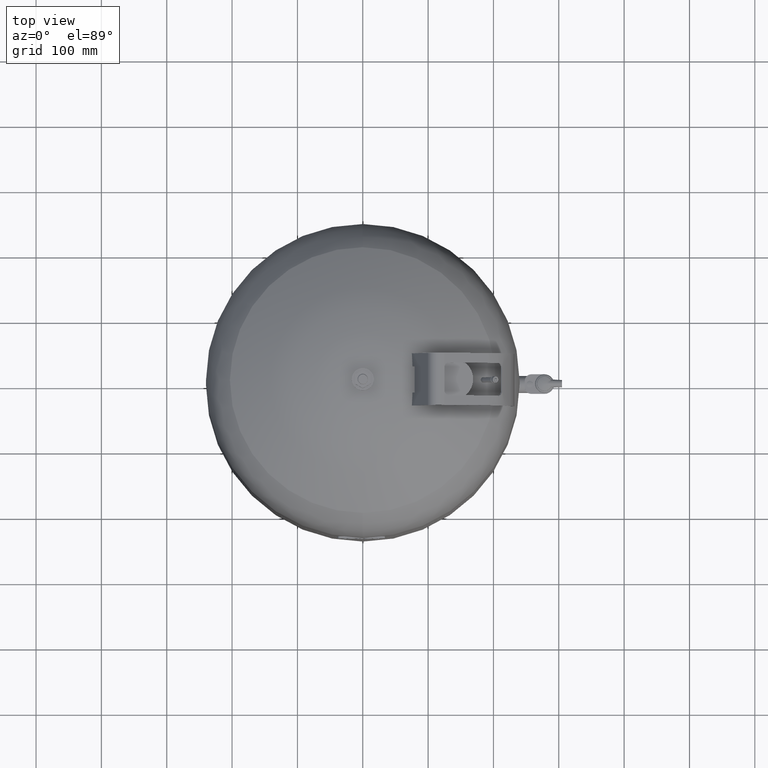
[diagram: clean part render]
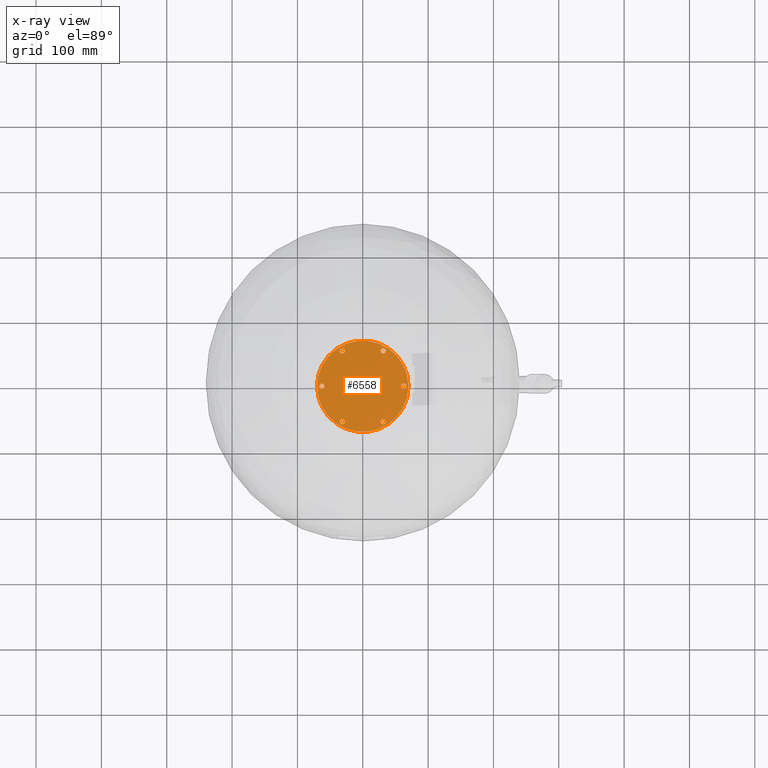
[diagram: x-ray — body ghosted, one internal face saturated and labeled with its STEP entity id]
A machine part, top view, then the same camera in x-ray: the body is ghosted and one INTERNAL B-rep face — a face not visible from any outside direction — is saturated and labeled: STEP entity #6558.
In plain terms, the highlighted planar face has unit normal (0, 0, -1).
Its self-contained STEP definition (entity closure, byte-faithful):
#3342=CARTESIAN_POINT('',(70.0,4.071951E-015,185.250000000000000));
#3343=VERTEX_POINT('',#3342);
#3359=CARTESIAN_POINT('',(-70.0,-4.500294E-015,185.250000000000000));
#3360=VERTEX_POINT('',#3359);
#3367=CARTESIAN_POINT('',(-1.990051E-016,4.071951E-015,185.250000000000000));
#3368=DIRECTION('',(0.0,0.0,-1.0));
#3369=DIRECTION('',(1.0,0.0,0.0));
#3370=AXIS2_PLACEMENT_3D('',#3367,#3368,#3369);
#3371=CIRCLE('',#3370,70.0);
#3372=EDGE_CURVE('',#3343,#3360,#3371,.T.);
#3466=CARTESIAN_POINT('',(-66.500000000000000,4.071951E-015,185.250000000000000));
#3467=VERTEX_POINT('',#3466);
#3476=CARTESIAN_POINT('',(-64.921999999999997,3.183381221280215,185.250000000000000));
#3477=VERTEX_POINT('',#3476);
#3478=CARTESIAN_POINT('',(-62.499999999999993,4.071951E-015,185.250000000000000));
#3479=DIRECTION('',(0.0,0.0,1.0));
#3480=DIRECTION('',(-1.0,0.0,0.0));
#3481=AXIS2_PLACEMENT_3D('',#3478,#3479,#3480);
#3482=CIRCLE('',#3481,4.0);
#3483=EDGE_CURVE('',#3477,#3467,#3482,.T.);
#3485=CARTESIAN_POINT('',(-58.499999999999993,4.561793E-015,185.250000000000000));
#3486=VERTEX_POINT('',#3485);
#3487=CARTESIAN_POINT('',(-62.499999999999993,4.071951E-015,185.250000000000000));
#3488=DIRECTION('',(0.0,0.0,1.0));
#3489=DIRECTION('',(-1.0,0.0,0.0));
#3490=AXIS2_PLACEMENT_3D('',#3487,#3488,#3489);
#3491=CIRCLE('',#3490,4.0);
#3492=EDGE_CURVE('',#3486,#3477,#3491,.T.);
#3601=CARTESIAN_POINT('',(-33.250000000000007,57.590689351665169,185.249999999999970));
#3602=VERTEX_POINT('',#3601);
#3611=CARTESIAN_POINT('',(-29.704110992441013,57.815791875133435,185.249999999999970));
#3612=VERTEX_POINT('',#3611);
#3613=CARTESIAN_POINT('',(-31.250000000000004,54.126587736527412,185.249999999999970));
#3614=DIRECTION('',(-5.302876E-017,9.184851E-017,1.0));
#3615=DIRECTION('',(-0.500000000000000,0.866025403784439,-1.060575E-016));
#3616=AXIS2_PLACEMENT_3D('',#3613,#3614,#3615);
#3617=CIRCLE('',#3616,4.0);
#3618=EDGE_CURVE('',#3612,#3602,#3617,.T.);
#3620=CARTESIAN_POINT('',(-29.250000000000004,50.662486121389655,185.249999999999970));
#3621=VERTEX_POINT('',#3620);
#3622=CARTESIAN_POINT('',(-31.250000000000004,54.126587736527412,185.249999999999970));
#3623=DIRECTION('',(-5.302876E-017,9.184851E-017,1.0));
#3624=DIRECTION('',(-0.500000000000000,0.866025403784439,-1.060575E-016));
#3625=AXIS2_PLACEMENT_3D('',#3622,#3623,#3624);
#3626=CIRCLE('',#3625,4.0);
#3627=EDGE_CURVE('',#3621,#3612,#3626,.T.);
#3694=CARTESIAN_POINT('',(33.249999999999979,57.590689351665191,185.249999999999970));
#3695=VERTEX_POINT('',#3694);
#3704=CARTESIAN_POINT('',(35.217889007558981,54.632410653853249,185.249999999999970));
#3705=VERTEX_POINT('',#3704);
#3706=CARTESIAN_POINT('',(31.249999999999982,54.126587736527433,185.249999999999970));
#3707=DIRECTION('',(5.302876E-017,9.184851E-017,1.000000000000000));
#3708=DIRECTION('',(0.500000000000000,0.866025403784439,-1.060575E-016));
#3709=AXIS2_PLACEMENT_3D('',#3706,#3707,#3708);
#3710=CIRCLE('',#3709,4.0);
#3711=EDGE_CURVE('',#3705,#3695,#3710,.T.);
#3713=CARTESIAN_POINT('',(29.249999999999982,50.662486121389676,185.249999999999970));
#3714=VERTEX_POINT('',#3713);
#3715=CARTESIAN_POINT('',(31.249999999999982,54.126587736527433,185.249999999999970));
#3716=DIRECTION('',(5.302876E-017,9.184851E-017,1.000000000000000));
#3717=DIRECTION('',(0.500000000000000,0.866025403784439,-1.060575E-016));
#3718=AXIS2_PLACEMENT_3D('',#3715,#3716,#3717);
#3719=CIRCLE('',#3718,4.0);
#3720=EDGE_CURVE('',#3714,#3705,#3719,.T.);
#4341=CARTESIAN_POINT('',(-33.249999999999950,-57.590689351665191,185.250000000000000));
#4342=VERTEX_POINT('',#4341);
#4351=CARTESIAN_POINT('',(-29.249999999999954,-50.662486121389676,185.250000000000000));
#4352=VERTEX_POINT('',#4351);
#4353=CARTESIAN_POINT('',(-31.249999999999950,-54.126587736527433,185.250000000000000));
#4354=DIRECTION('',(5.302876E-017,9.184851E-017,1.000000000000000));
#4355=DIRECTION('',(-0.499999999999999,-0.866025403784439,1.060575E-016));
#4356=AXIS2_PLACEMENT_3D('',#4353,#4354,#4355);
#4357=CIRCLE('',#4356,4.0);
#4358=EDGE_CURVE('',#4352,#4342,#4357,.T.);
#4383=CARTESIAN_POINT('',(33.250000000000028,-57.590689351665148,185.250000000000000));
#4384=VERTEX_POINT('',#4383);
#4393=CARTESIAN_POINT('',(29.250000000000025,-50.662486121389634,185.250000000000000));
#4394=VERTEX_POINT('',#4393);
#4395=CARTESIAN_POINT('',(31.250000000000028,-54.126587736527391,185.250000000000000));
#4396=DIRECTION('',(-5.302876E-017,9.184851E-017,1.000000000000000));
#4397=DIRECTION('',(0.500000000000001,-0.866025403784438,1.060575E-016));
#4398=AXIS2_PLACEMENT_3D('',#4395,#4396,#4397);
#4399=CIRCLE('',#4398,4.0);
#4400=EDGE_CURVE('',#4394,#4384,#4399,.T.);
#4425=CARTESIAN_POINT('',(66.500000000000000,1.350885E-014,185.250000000000000));
#4426=VERTEX_POINT('',#4425);
#4435=CARTESIAN_POINT('',(58.500000000000000,1.190878E-014,185.250000000000000));
#4436=VERTEX_POINT('',#4435);
#4437=CARTESIAN_POINT('',(62.500000000000000,1.295373E-014,185.250000000000000));
#4438=DIRECTION('',(0.0,0.0,1.0));
#4439=DIRECTION('',(1.0,0.0,0.0));
#4440=AXIS2_PLACEMENT_3D('',#4437,#4438,#4439);
#4441=CIRCLE('',#4440,4.000000000000001);
#4442=EDGE_CURVE('',#4436,#4426,#4441,.T.);
#4476=CARTESIAN_POINT('',(64.921999999999997,3.183381221280225,185.250000000000000));
#4477=VERTEX_POINT('',#4476);
#4478=CARTESIAN_POINT('',(62.500000000000000,1.295373E-014,185.250000000000000));
#4479=DIRECTION('',(0.0,0.0,1.0));
#4480=DIRECTION('',(1.0,0.0,0.0));
#4481=AXIS2_PLACEMENT_3D('',#4478,#4479,#4480);
#4482=CIRCLE('',#4481,4.000000000000001);
#4483=EDGE_CURVE('',#4477,#4436,#4482,.T.);
#4485=CARTESIAN_POINT('',(62.500000000000000,1.295373E-014,185.250000000000000));
#4486=DIRECTION('',(0.0,0.0,1.0));
#4487=DIRECTION('',(1.0,0.0,0.0));
#4488=AXIS2_PLACEMENT_3D('',#4485,#4486,#4487);
#4489=CIRCLE('',#4488,4.000000000000001);
#4490=EDGE_CURVE('',#4426,#4477,#4489,.T.);
#4509=CARTESIAN_POINT('',(35.217889007559023,-54.632410653853192,185.250000000000000));
#4510=VERTEX_POINT('',#4509);
#4511=CARTESIAN_POINT('',(31.250000000000028,-54.126587736527391,185.250000000000000));
#4512=DIRECTION('',(-5.302876E-017,9.184851E-017,1.000000000000000));
#4513=DIRECTION('',(0.500000000000001,-0.866025403784438,1.060575E-016));
#4514=AXIS2_PLACEMENT_3D('',#4511,#4512,#4513);
#4515=CIRCLE('',#4514,4.0);
#4516=EDGE_CURVE('',#4510,#4394,#4515,.T.);
#4518=CARTESIAN_POINT('',(31.250000000000028,-54.126587736527391,185.250000000000000));
#4519=DIRECTION('',(-5.302876E-017,9.184851E-017,1.000000000000000));
#4520=DIRECTION('',(0.500000000000001,-0.866025403784438,1.060575E-016));
#4521=AXIS2_PLACEMENT_3D('',#4518,#4519,#4520);
#4522=CIRCLE('',#4521,4.0);
#4523=EDGE_CURVE('',#4384,#4510,#4522,.T.);
#4542=CARTESIAN_POINT('',(-29.704110992440960,-57.815791875133449,185.250000000000000));
#4543=VERTEX_POINT('',#4542);
#4544=CARTESIAN_POINT('',(-31.249999999999950,-54.126587736527433,185.250000000000000));
#4545=DIRECTION('',(5.302876E-017,9.184851E-017,1.000000000000000));
#4546=DIRECTION('',(-0.499999999999999,-0.866025403784439,1.060575E-016));
#4547=AXIS2_PLACEMENT_3D('',#4544,#4545,#4546);
#4548=CIRCLE('',#4547,4.0);
#4549=EDGE_CURVE('',#4543,#4352,#4548,.T.);
#4551=CARTESIAN_POINT('',(-31.249999999999950,-54.126587736527433,185.250000000000000));
#4552=DIRECTION('',(5.302876E-017,9.184851E-017,1.000000000000000));
#4553=DIRECTION('',(-0.499999999999999,-0.866025403784439,1.060575E-016));
#4554=AXIS2_PLACEMENT_3D('',#4551,#4552,#4553);
#4555=CIRCLE('',#4554,4.0);
#4556=EDGE_CURVE('',#4342,#4543,#4555,.T.);
#5595=CARTESIAN_POINT('',(31.249999999999982,54.126587736527433,185.249999999999970));
#5596=DIRECTION('',(5.302876E-017,9.184851E-017,1.000000000000000));
#5597=DIRECTION('',(0.500000000000000,0.866025403784439,-1.060575E-016));
#5598=AXIS2_PLACEMENT_3D('',#5595,#5596,#5597);
#5599=CIRCLE('',#5598,4.0);
#5600=EDGE_CURVE('',#3695,#3714,#5599,.T.);
#5847=CARTESIAN_POINT('',(-31.250000000000004,54.126587736527412,185.249999999999970));
#5848=DIRECTION('',(-5.302876E-017,9.184851E-017,1.0));
#5849=DIRECTION('',(-0.500000000000000,0.866025403784439,-1.060575E-016));
#5850=AXIS2_PLACEMENT_3D('',#5847,#5848,#5849);
#5851=CIRCLE('',#5850,4.0);
#5852=EDGE_CURVE('',#3602,#3621,#5851,.T.);
#6117=CARTESIAN_POINT('',(-62.499999999999993,4.071951E-015,185.250000000000000));
#6118=DIRECTION('',(0.0,0.0,1.0));
#6119=DIRECTION('',(-1.0,0.0,0.0));
#6120=AXIS2_PLACEMENT_3D('',#6117,#6118,#6119);
#6121=CIRCLE('',#6120,4.0);
#6122=EDGE_CURVE('',#3467,#3486,#6121,.T.);
#6507=CARTESIAN_POINT('',(-1.990051E-016,4.071951E-015,185.250000000000000));
#6508=DIRECTION('',(0.0,0.0,-1.0));
#6509=DIRECTION('',(1.0,0.0,0.0));
#6510=AXIS2_PLACEMENT_3D('',#6507,#6508,#6509);
#6511=CIRCLE('',#6510,70.0);
#6512=EDGE_CURVE('',#3360,#3343,#6511,.T.);
#6519=CARTESIAN_POINT('',(-1.990051E-016,4.071951E-015,185.250000000000000));
#6520=DIRECTION('',(0.0,0.0,-1.0));
#6521=DIRECTION('',(-1.0,0.0,0.0));
#6522=AXIS2_PLACEMENT_3D('',#6519,#6520,#6521);
#6523=PLANE('',#6522);
#6524=ORIENTED_EDGE('',*,*,#3372,.T.);
#6525=ORIENTED_EDGE('',*,*,#6512,.T.);
#6526=EDGE_LOOP('',(#6524,#6525));
#6527=FACE_OUTER_BOUND('',#6526,.T.);
#6528=ORIENTED_EDGE('',*,*,#3711,.T.);
#6529=ORIENTED_EDGE('',*,*,#5600,.T.);
#6530=ORIENTED_EDGE('',*,*,#3720,.T.);
#6531=EDGE_LOOP('',(#6528,#6529,#6530));
#6532=FACE_BOUND('',#6531,.T.);
#6533=ORIENTED_EDGE('',*,*,#4483,.T.);
#6534=ORIENTED_EDGE('',*,*,#4442,.T.);
#6535=ORIENTED_EDGE('',*,*,#4490,.T.);
#6536=EDGE_LOOP('',(#6533,#6534,#6535));
#6537=FACE_BOUND('',#6536,.T.);
#6538=ORIENTED_EDGE('',*,*,#3618,.T.);
#6539=ORIENTED_EDGE('',*,*,#5852,.T.);
#6540=ORIENTED_EDGE('',*,*,#3627,.T.);
#6541=EDGE_LOOP('',(#6538,#6539,#6540));
#6542=FACE_BOUND('',#6541,.T.);
#6543=ORIENTED_EDGE('',*,*,#4516,.T.);
#6544=ORIENTED_EDGE('',*,*,#4400,.T.);
#6545=ORIENTED_EDGE('',*,*,#4523,.T.);
#6546=EDGE_LOOP('',(#6543,#6544,#6545));
#6547=FACE_BOUND('',#6546,.T.);
#6548=ORIENTED_EDGE('',*,*,#3483,.T.);
#6549=ORIENTED_EDGE('',*,*,#6122,.T.);
#6550=ORIENTED_EDGE('',*,*,#3492,.T.);
#6551=EDGE_LOOP('',(#6548,#6549,#6550));
#6552=FACE_BOUND('',#6551,.T.);
#6553=ORIENTED_EDGE('',*,*,#4549,.T.);
#6554=ORIENTED_EDGE('',*,*,#4358,.T.);
#6555=ORIENTED_EDGE('',*,*,#4556,.T.);
#6556=EDGE_LOOP('',(#6553,#6554,#6555));
#6557=FACE_BOUND('',#6556,.T.);
#6558=ADVANCED_FACE('',(#6527,#6532,#6537,#6542,#6547,#6552,#6557),#6523,.T.);